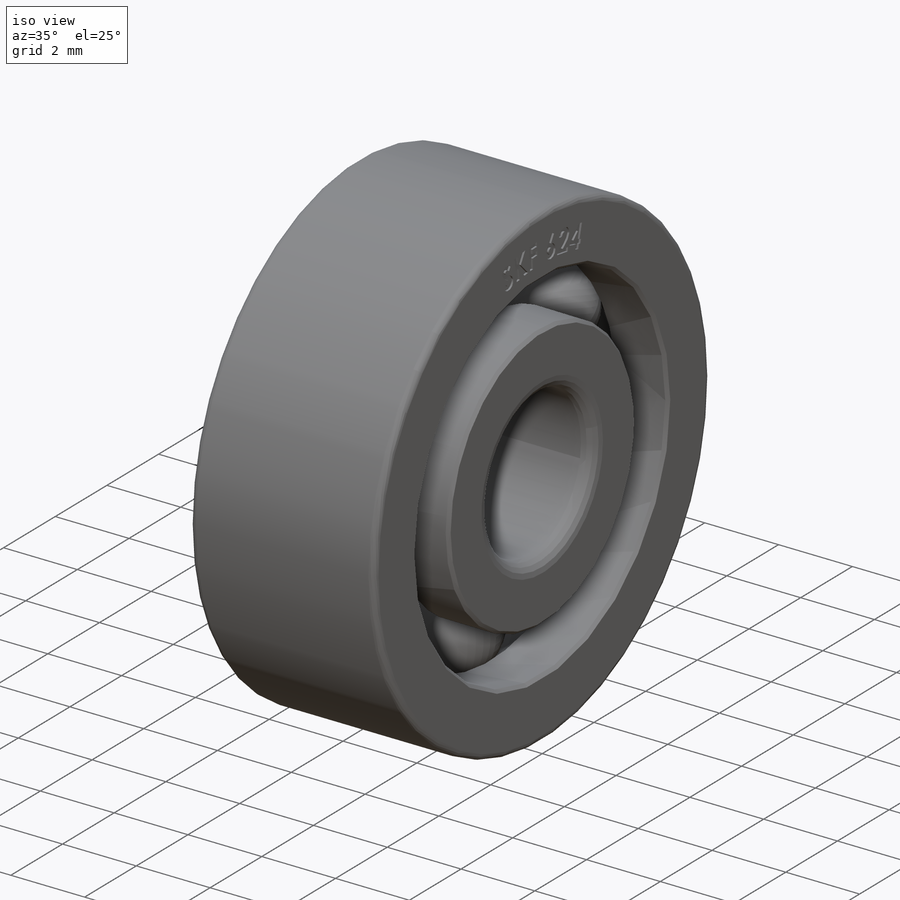
[diagram: iso view]
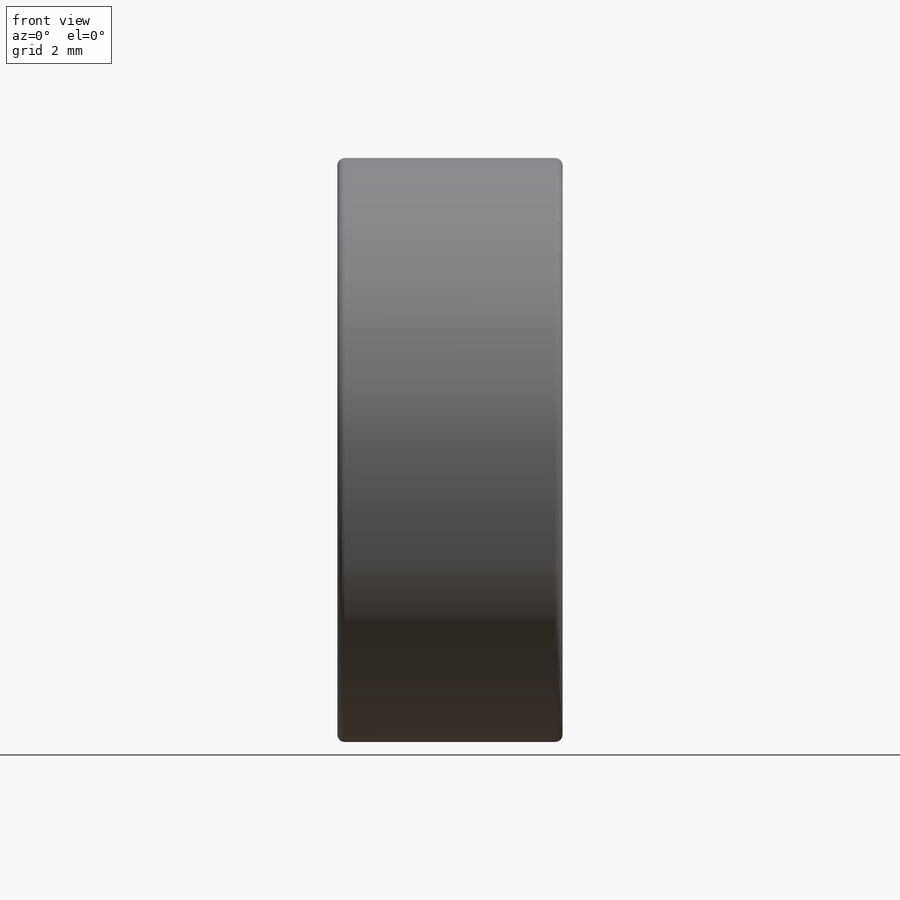
[diagram: front view]
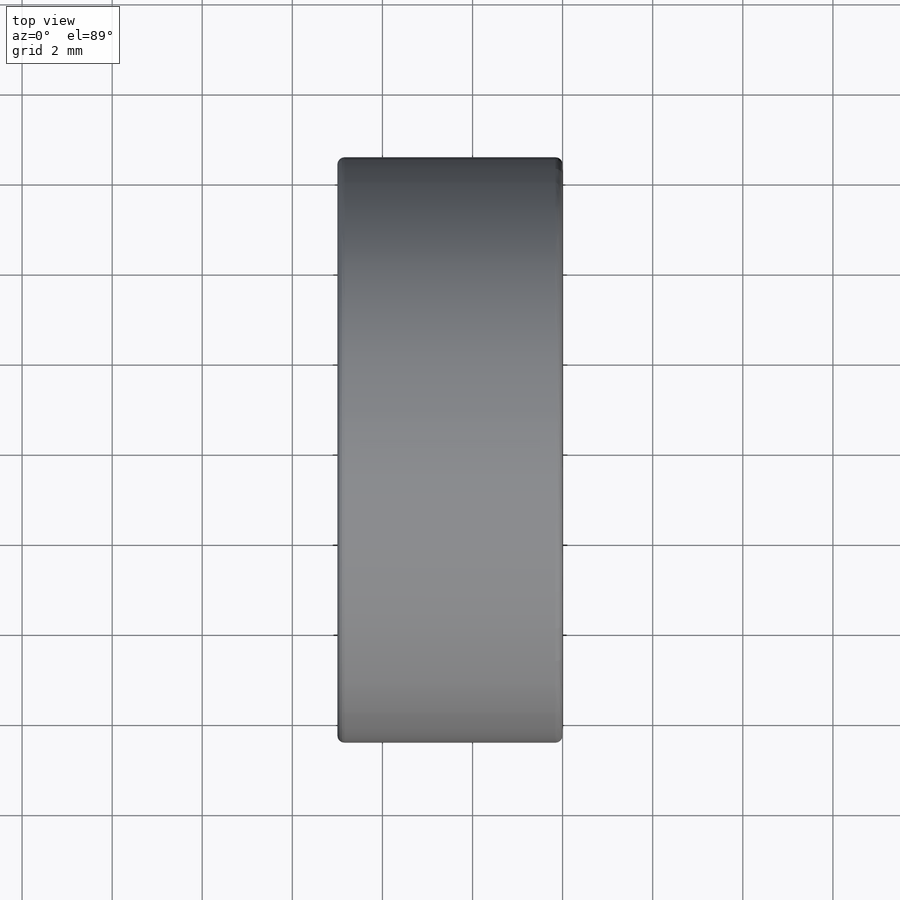
[diagram: top view]
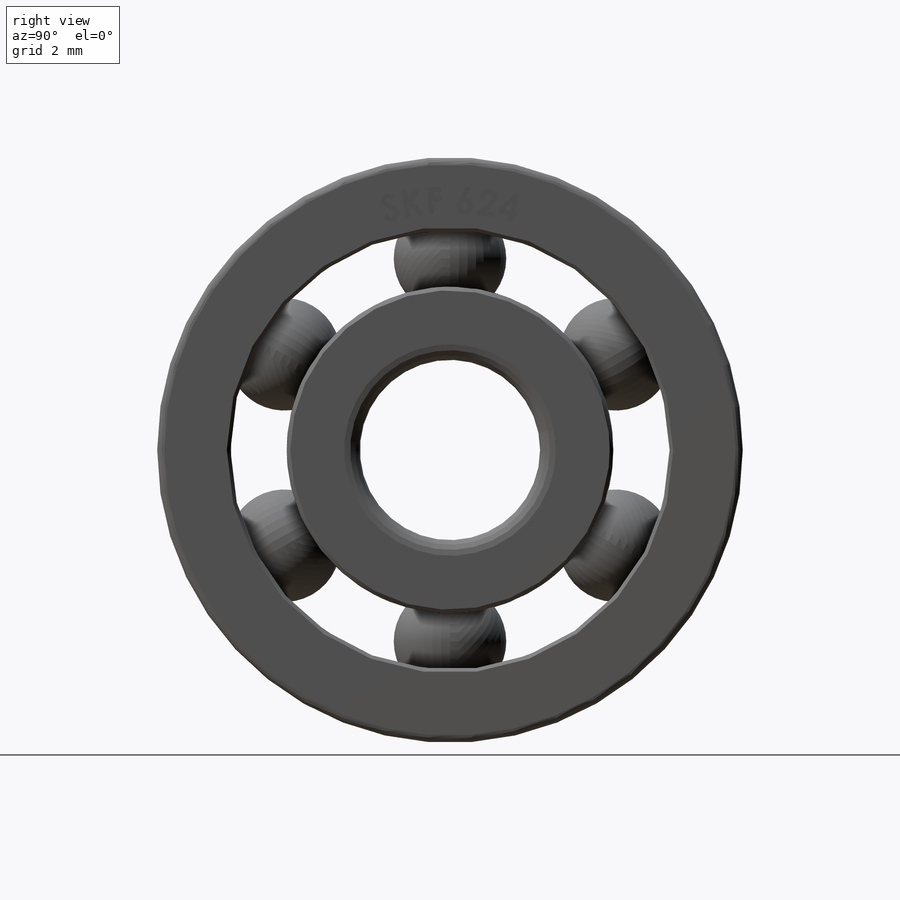
[diagram: right view]
SOLIDWORKS PART (.sldprt)
format: sldprt  version: not decoded by parser v0  size: 632,832 bytes
history: native  units: mm
features: sketch x5, revolve x2, plane x2, extrude x2, material x1, pattern_circular x1 (+11 scaffold rows collapsed)
feature tree (24):
  scaffold x11  (default folders/planes/origin — collapsed)
  material  "Material <not specified>"
  sketch  "Sketch1"  dims[c1.D4=2.5mm c1.D9=0.16mm c1.D10=0.35mm c1.D6=2.5mm c1.D1=2.0mm c1.D2=5.0mm c1.D3=6.5mm c1.D5=2.5mm c2.D6=2.25mm c2.D7=1.25mm c2.D8=1.625mm c2.D11=4.5mm c2.D12=1.625mm c3.D7=1.625mm c3.D11=4.25mm c3.D4=4.25mm c3.D5=2.5mm]
  revolve  "Revolve1"  Angle=360deg
  sketch  "Sketch2"  dims[D1=2.5mm D2=4.25mm D3=2.5mm]
  revolve  "Revolve2"  Angle=360deg
  pattern_circular  "CirPattern2"  Count=6 Angle=360deg
  sketch  "Sketch5"  dims[c1.D1=10.5mm c1.D2=5.25mm c2.D2=30.0deg c2.D1=0.05mm]
  plane  "Plane1"  Offset=0.5mm
  sketch  "Sketch3"  dims[D1=7.25mm D2=9.75mm]
  extrude  "Seal 1"  Depth=0.2mm
  plane  "Plane2"  Offset=0.5mm
  sketch  "Sketch4"  dims[D1=7.25mm D2=9.75mm]
  extrude  "Extrude2"  Depth=0.2mm
decode coverage: 10 of 10 modeling features carry decoded parameters
note: suppression state not decoded; provenance and decode notes live in map.json
